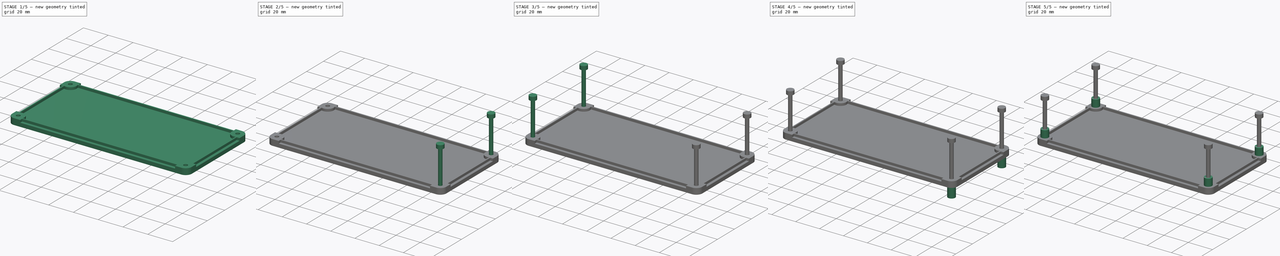
[diagram: build sequence overview — one tinted view per stage of 5, left to right]
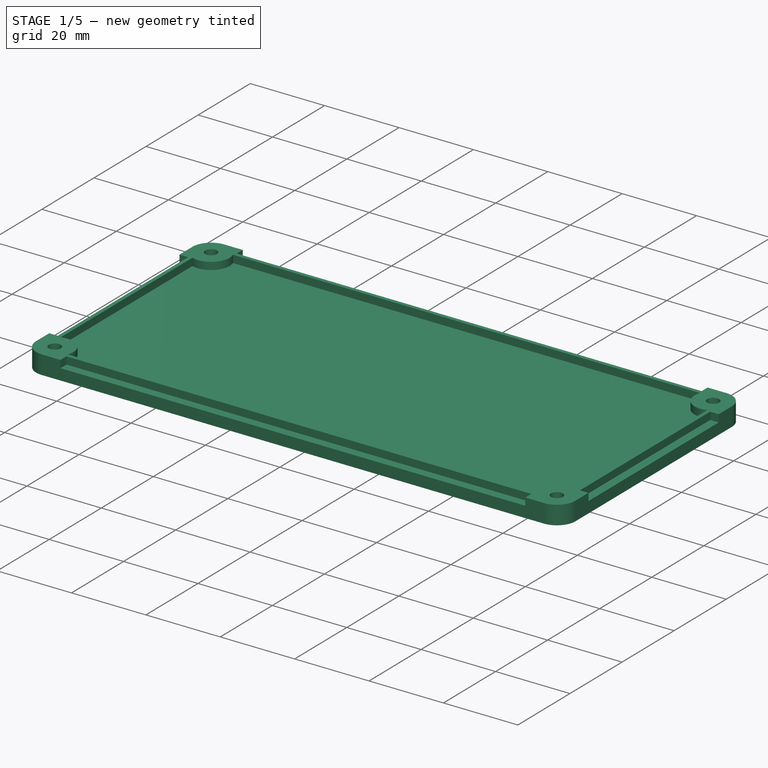
[diagram: stage 1 of 5 — iso view after this stage's code; geometry added in this stage tinted green]
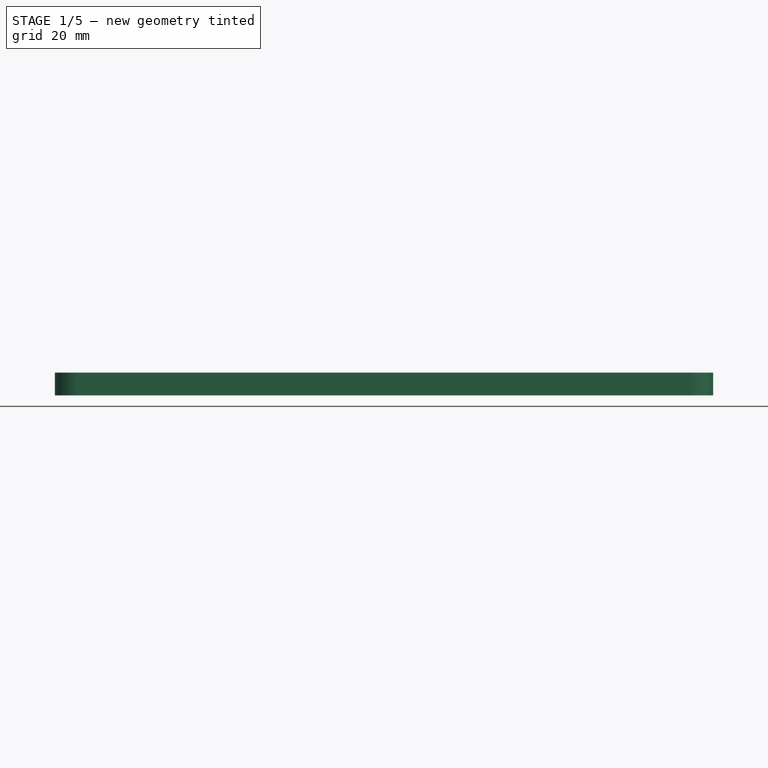
[diagram: stage 1 of 5 — front view after this stage's code; geometry added in this stage tinted green]
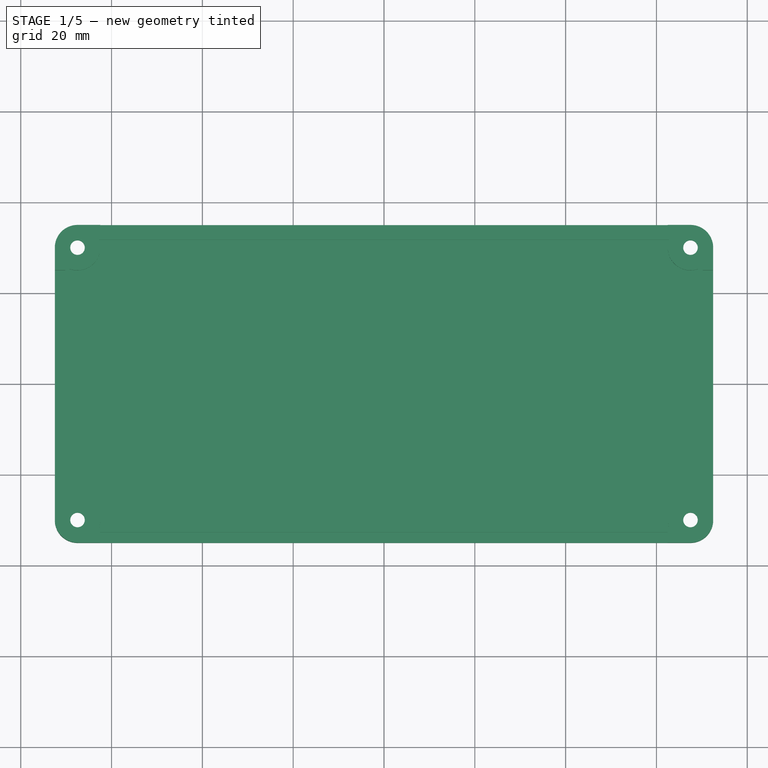
[diagram: stage 1 of 5 — top view after this stage's code; geometry added in this stage tinted green]
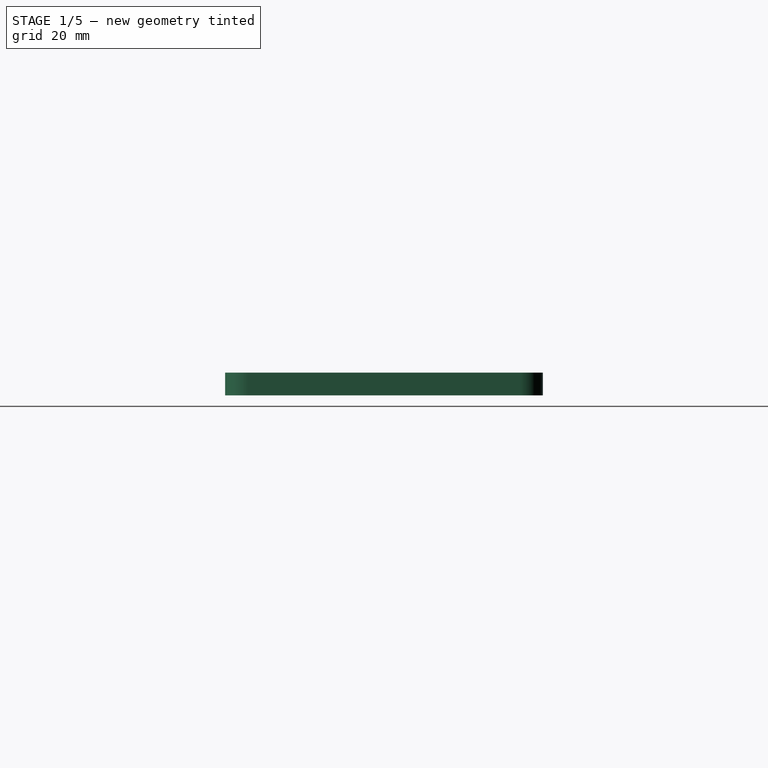
[diagram: stage 1 of 5 — right view after this stage's code; geometry added in this stage tinted green]
FCSTD DOCUMENT  (FreeCAD 0.16R6703 (Git))
Label: backside
License: CreativeCommons Attribution
LicenseURL: http://creativecommons.org/licenses/by/4.0/
objects: Part::FeaturePython×8, Sketcher::SketchObject×4, PartDesign::Pad×2, Part::MultiFuse×2, Part::Cylinder×1, PartDesign::Revolution×1, PartDesign::Pocket×1
note: 23 computed .brp shape members not serialized (recipe doc carries the construction recipe); baked Part::Feature solids carry a one-line shape summary decoded from their .brp

FEATURE [Sketcher::SketchObject] Sketch
  sketch-geometry (8):
    g0: LineSegment StartX=-67.5 StartY=-35 StartZ=0 EndX=67.5 EndY=-35 EndZ=0
    g1: LineSegment StartX=72.5 StartY=-30 StartZ=0 EndX=72.5 EndY=30 EndZ=0
    g2: LineSegment StartX=67.5 StartY=35 StartZ=0 EndX=-67.5 EndY=35 EndZ=0
    g3: LineSegment StartX=-72.5 StartY=30 StartZ=0 EndX=-72.5 EndY=-30 EndZ=0
    g4: ArcOfCircle CenterX=-67.5 CenterY=30 CenterZ=0 NormalX=0 NormalY=0 NormalZ=1 Radius=5 StartAngle=1.5708 EndAngle=3.14159
    g5: ArcOfCircle CenterX=-67.5 CenterY=-30 CenterZ=0 NormalX=0 NormalY=0 NormalZ=1 Radius=5 StartAngle=3.14159 EndAngle=4.71239
    g6: ArcOfCircle CenterX=67.5 CenterY=-30 CenterZ=0 NormalX=0 NormalY=0 NormalZ=1 Radius=5 StartAngle=4.71239 EndAngle=6.28319
    g7: ArcOfCircle CenterX=67.5 CenterY=30 CenterZ=0 NormalX=0 NormalY=0 NormalZ=1 Radius=5 StartAngle=0 EndAngle=1.5708
  constraints (19):
    c: Horizontal(g0)
    c: Horizontal(g2)
    c: Vertical(g1)
    c: Vertical(g3)
    c: Tangent(g2,g4)
    c: Tangent(g3,g4)
    c: Tangent(g0,g5)
    c: Tangent(g3,g5)
    c: Tangent(g0,g6)
    c: Tangent(g1,g6)
    c: Tangent(g1,g7)
    c: Tangent(g2,g7)
    c: Radius(g4) = 5
    c: Radius(g6) = 5
    c: Radius(g7) = 5
    c: DistanceY(g0,g2) = 70
    c: DistanceX(g3,g1) = 145
    c: Symmetric(g2,g0,g-1)
    c: Symmetric(g1,g3,g-2)
FEATURE [PartDesign::Pad] Pad
  Length = 3
  Length2 = 100
  Sketch = -> Sketch
  Type = 0
FEATURE [Sketcher::SketchObject] Sketch009
  Placement = pos=(0,0,3) rot=(0,0,1;0rad)
  Support = -> Pad [Face10]
  sketch-geometry (36):
    g0: ArcOfCircle CenterX=67.5 CenterY=30 CenterZ=0 NormalX=0 NormalY=0 NormalZ=1 Radius=5 StartAngle=0 EndAngle=1.5708
    g1: ArcOfCircle CenterX=67.5 CenterY=-30 CenterZ=0 NormalX=0 NormalY=0 NormalZ=1 Radius=5 StartAngle=4.71239 EndAngle=6.28319
    g2: ArcOfCircle CenterX=-67.5 CenterY=-30 CenterZ=0 NormalX=0 NormalY=0 NormalZ=1 Radius=5 StartAngle=3.14159 EndAngle=4.71239
    g3: ArcOfCircle CenterX=-67.5 CenterY=30 CenterZ=0 NormalX=0 NormalY=0 NormalZ=1 Radius=5 StartAngle=1.5708 EndAngle=3.14159
    g4: LineSegment StartX=-67.5 StartY=35 StartZ=0 EndX=-62.5 EndY=35 EndZ=0
    g5: LineSegment StartX=-62.5 StartY=35 StartZ=0 EndX=-62.5 EndY=32.7 EndZ=0
    g6: LineSegment StartX=-62.5 StartY=32.7 StartZ=0 EndX=62.5 EndY=32.7 EndZ=0
    g7: LineSegment StartX=62.5 StartY=32.7 StartZ=0 EndX=62.5 EndY=35 EndZ=0
    g8: LineSegment StartX=62.5 StartY=35 StartZ=0 EndX=67.5 EndY=35 EndZ=0
    g9: LineSegment StartX=-72.5 StartY=30 StartZ=0 EndX=-72.5 EndY=25 EndZ=0
    g10: LineSegment StartX=-72.5 StartY=25 StartZ=0 EndX=-70.2 EndY=25 EndZ=0
    g11: LineSegment StartX=-70.2 StartY=25 StartZ=0 EndX=-70.2 EndY=-25 EndZ=0
    g12: LineSegment StartX=-70.2 StartY=-25 StartZ=0 EndX=-72.5 EndY=-25 EndZ=0
    g13: LineSegment StartX=-72.5 StartY=-25 StartZ=0 EndX=-72.5 EndY=-30 EndZ=0
    g14: LineSegment StartX=-67.5 StartY=-35 StartZ=0 EndX=-62.5 EndY=-35 EndZ=0
    g15: LineSegment StartX=-62.5 StartY=-35 StartZ=0 EndX=-62.5 EndY=-32.7 EndZ=0
    g16: LineSegment StartX=-62.5 StartY=-32.7 StartZ=0 EndX=62.5 EndY=-32.7 EndZ=0
    g17: LineSegment StartX=62.5 StartY=-32.7 StartZ=0 EndX=62.5 EndY=-35 EndZ=0
    g18: LineSegment StartX=62.5 StartY=-35 StartZ=0 EndX=67.5 EndY=-35 EndZ=0
    g19: LineSegment StartX=72.5 StartY=-30 StartZ=0 EndX=72.5 EndY=-25 EndZ=0
    g20: LineSegment StartX=72.5 StartY=-25 StartZ=0 EndX=70.2 EndY=-25 EndZ=0
    g21: LineSegment StartX=70.2 StartY=-25 StartZ=0 EndX=70.2 EndY=25 EndZ=0
    g22: LineSegment StartX=70.2 StartY=25 StartZ=0 EndX=72.5 EndY=25 EndZ=0
    g23: LineSegment StartX=72.5 StartY=25 StartZ=0 EndX=72.5 EndY=30 EndZ=0
    g24: LineSegment StartX=-62.7979 StartY=31.7 StartZ=0 EndX=62.7979 EndY=31.7 EndZ=0
    g25: LineSegment StartX=69.2 StartY=25.2979 StartZ=0 EndX=69.2 EndY=-25.2979 EndZ=0
    g26: LineSegment StartX=62.7979 StartY=-31.7 StartZ=0 EndX=-62.7979 EndY=-31.7 EndZ=0
    g27: LineSegment StartX=-69.2 StartY=-25.2979 StartZ=0 EndX=-69.2 EndY=25.2979 EndZ=0
    g28: ArcOfCircle CenterX=-67.5 CenterY=30 CenterZ=0 NormalX=0 NormalY=0 NormalZ=1 Radius=5 StartAngle=4.36547 EndAngle=6.6301
    g29: ArcOfCircle CenterX=-67.5 CenterY=-30 CenterZ=0 NormalX=0 NormalY=0 NormalZ=1 Radius=5 StartAngle=5.93627 EndAngle=8.2009
    g30: ArcOfCircle CenterX=67.5 CenterY=-30 CenterZ=0 NormalX=0 NormalY=0 NormalZ=1 Radius=5 StartAngle=1.22388 EndAngle=3.48851
    g31: ArcOfCircle CenterX=67.5 CenterY=30 CenterZ=0 NormalX=0 NormalY=0 NormalZ=1 Radius=5 StartAngle=2.79468 EndAngle=5.05931
    g32: Circle CenterX=-67.5 CenterY=30 CenterZ=0 NormalX=0 NormalY=0 NormalZ=1 Radius=1.6
    g33: Circle CenterX=-67.5 CenterY=-30 CenterZ=0 NormalX=0 NormalY=0 NormalZ=1 Radius=1.6
    g34: Circle CenterX=67.5 CenterY=-30 CenterZ=0 NormalX=0 NormalY=0 NormalZ=1 Radius=1.6
    g35: Circle CenterX=67.5 CenterY=30 CenterZ=0 NormalX=0 NormalY=0 NormalZ=1 Radius=1.6
  constraints (100):
    c: Tangent(g3,g4) = 1.5708
    c: Coincident(g4,g5)
    c: Vertical(g5)
    c: Coincident(g5,g6)
    c: Coincident(g6,g7)
    c: Vertical(g7)
    c: Coincident(g7,g8)
    c: Coincident(g8,g0)
    c: Horizontal(g8)
    c: Tangent(g3,g9) = -1.5708
    c: Coincident(g9,g10)
    c: Horizontal(g10)
    c: Coincident(g10,g11)
    c: Vertical(g11)
    c: Coincident(g11,g12)
    c: Horizontal(g12)
    c: Coincident(g12,g13)
    c: Coincident(g13,g2)
    c: Vertical(g13)
    c: Tangent(g2,g14) = -1.5708
    c: Coincident(g14,g15)
    c: Vertical(g15)
    c: Coincident(g15,g16)
    c: Coincident(g16,g17)
    c: Vertical(g17)
    c: Coincident(g17,g18)
    c: Coincident(g18,g1)
    c: Horizontal(g18)
    c: Tangent(g1,g19) = -1.5708
    c: Coincident(g19,g20)
    c: Horizontal(g20)
    c: Coincident(g20,g21)
    c: Coincident(g21,g22)
    c: Horizontal(g22)
    c: Coincident(g22,g23)
    c: Coincident(g23,g0)
    c: Vertical(g23)
    c: Symmetric(g5,g6,g-2)
    c: Equal(g6,g16)
    c: Symmetric(g15,g16,g-2)
    c: Symmetric(g15,g5,g-1)
    c: Equal(g17,g20)
    c: Equal(g20,g22)
    c: Equal(g22,g7)
    c: Equal(g7,g5)
    c: Equal(g5,g10)
    c: Equal(g10,g12)
    c: Equal(g12,g15)
    c: Horizontal(g4)
    c: Horizontal(g14)
    c: Vertical(g19)
    c: Equal(g14,g4)
    c: Equal(g4,g9)
    c: Equal(g9,g13)
    c: Equal(g13,g18)
    c: Equal(g18,g19)
    c: Equal(g19,g23)
    c: Equal(g23,g8)
    c: Equal(g21,g11)
    c: Symmetric(g21,g20,g-1)
    c: Symmetric(g10,g11,g-1)
    c: Equal(g0,g3)
    c: Equal(g3,g2)
    c: DistanceX(g12,g19) = 145
    c: DistanceY(g17,g7) = 70
    c: Radius(g1) = 5
    c: DistanceX(g12,g11) = 2.3
    c: DistanceX(g3,g4) = 5
    c: Horizontal(g24)
    c: Horizontal(g26)
    c: Vertical(g25)
    c: Vertical(g27)
    c: Coincident(g28,g27)
    c: Coincident(g28,g24)
    c: Coincident(g28,g3)
    c: Radius(g28) = 5
    c: DistanceX(g10,g27) = 1
    c: DistanceY(g24,g5) = 1
    c: Coincident(g29,g2)
    c: Coincident(g29,g27)
    c: Coincident(g29,g26)
    c: Coincident(g30,g1)
    c: Coincident(g30,g26)
    c: Coincident(g30,g25)
    c: Coincident(g31,g0)
    c: Coincident(g31,g25)
    c: Coincident(g31,g24)
    c: Symmetric(g27,g25,g-2)
    c: Equal(g28,g29)
    c: Equal(g29,g30)
    c: Equal(g30,g31)
    c: Symmetric(g24,g26,g-1)
    c: Coincident(g32,g3)
    c: Coincident(g33,g2)
    c: Coincident(g34,g1)
    c: Coincident(g35,g0)
    c: Equal(g34,g35)
    c: Equal(g35,g32)
    c: Equal(g32,g33)
    c: Radius(g32) = 1.6
FEATURE [PartDesign::Pad] Pad001
  Length = 2
  Length2 = 100
  Sketch = -> Sketch009
  Type = 0
FEATURE [Sketcher::SketchObject] Sketch010
  Placement = pos=(0,0,0) rot=(1,0,0;3.14159rad)
  Support = -> Pad001 [Face1]
  sketch-geometry (28):
    g0: LineSegment StartX=-64.65 StartY=28.3546 StartZ=0 EndX=-64.65 EndY=31.6454 EndZ=0
    g1: LineSegment StartX=-64.65 StartY=31.6454 StartZ=0 EndX=-67.5 EndY=33.2909 EndZ=0
    g2: LineSegment StartX=-67.5 StartY=33.2909 StartZ=0 EndX=-70.35 EndY=31.6454 EndZ=0
    g3: LineSegment StartX=-70.35 StartY=31.6454 StartZ=0 EndX=-70.35 EndY=28.3546 EndZ=0
    g4: LineSegment StartX=-70.35 StartY=28.3546 StartZ=0 EndX=-67.5 EndY=26.7091 EndZ=0
    g5: LineSegment StartX=-67.5 StartY=26.7091 StartZ=0 EndX=-64.65 EndY=28.3546 EndZ=0
    g6: Circle [constr] CenterX=-67.5 CenterY=30 CenterZ=0 NormalX=0 NormalY=0 NormalZ=1 Radius=3.2909
    g7: LineSegment StartX=-64.65 StartY=-31.6454 StartZ=0 EndX=-64.65 EndY=-28.3546 EndZ=0
    g8: LineSegment StartX=-64.65 StartY=-28.3546 StartZ=0 EndX=-67.5 EndY=-26.7091 EndZ=0
    g9: LineSegment StartX=-67.5 StartY=-26.7091 StartZ=0 EndX=-70.35 EndY=-28.3546 EndZ=0
    g10: LineSegment StartX=-70.35 StartY=-28.3546 StartZ=0 EndX=-70.35 EndY=-31.6454 EndZ=0
    g11: LineSegment StartX=-70.35 StartY=-31.6454 StartZ=0 EndX=-67.5 EndY=-33.2909 EndZ=0
    g12: LineSegment StartX=-67.5 StartY=-33.2909 StartZ=0 EndX=-64.65 EndY=-31.6454 EndZ=0
    g13: Circle [constr] CenterX=-67.5 CenterY=-30 CenterZ=0 NormalX=0 NormalY=0 NormalZ=1 Radius=3.2909
    g14: LineSegment StartX=70.35 StartY=-31.6454 StartZ=0 EndX=70.35 EndY=-28.3546 EndZ=0
    g15: LineSegment StartX=70.35 StartY=-28.3546 StartZ=0 EndX=67.5 EndY=-26.7091 EndZ=0
    g16: LineSegment StartX=67.5 StartY=-26.7091 StartZ=0 EndX=64.65 EndY=-28.3546 EndZ=0
    g17: LineSegment StartX=64.65 StartY=-28.3546 StartZ=0 EndX=64.65 EndY=-31.6454 EndZ=0
    g18: LineSegment StartX=64.65 StartY=-31.6454 StartZ=0 EndX=67.5 EndY=-33.2909 EndZ=0
    g19: LineSegment StartX=67.5 StartY=-33.2909 StartZ=0 EndX=70.35 EndY=-31.6454 EndZ=0
    g20: Circle [constr] CenterX=67.5 CenterY=-30 CenterZ=0 NormalX=0 NormalY=0 NormalZ=1 Radius=3.2909
    g21: LineSegment StartX=70.35 StartY=28.3546 StartZ=0 EndX=70.35 EndY=31.6454 EndZ=0
    g22: LineSegment StartX=70.35 StartY=31.6454 StartZ=0 EndX=67.5 EndY=33.2909 EndZ=0
    g23: LineSegment StartX=67.5 StartY=33.2909 StartZ=0 EndX=64.65 EndY=31.6454 EndZ=0
    g24: LineSegment StartX=64.65 StartY=31.6454 StartZ=0 EndX=64.65 EndY=28.3546 EndZ=0
    g25: LineSegment StartX=64.65 StartY=28.3546 StartZ=0 EndX=67.5 EndY=26.7091 EndZ=0
    g26: LineSegment StartX=67.5 StartY=26.7091 StartZ=0 EndX=70.35 EndY=28.3546 EndZ=0
    g27: Circle [constr] CenterX=67.5 CenterY=30 CenterZ=0 NormalX=0 NormalY=0 NormalZ=1 Radius=3.2909
  constraints (65):
    c: Coincident(g0,g1)
    c: Coincident(g1,g2)
    c: Coincident(g2,g3)
    c: Coincident(g3,g4)
    c: Coincident(g4,g5)
    c: Coincident(g5,g0)
    c: Equal(g0, g1-g5) x5
    c: PointOnObject(g0,g6)
    c: PointOnObject(g1,g6)
    c: PointOnObject(g2,g6)
    c: PointOnObject(g3,g6)
    c: PointOnObject(g4,g6)
    c: PointOnObject(g5,g6)
    c: Distance(g2,g0) = 5.7
    c: DistanceX(g6,g1) = 0
    c: Coincident(g7,g8)
    c: Coincident(g8,g9)
    c: Coincident(g9,g10)
    c: Coincident(g10,g11)
    c: Coincident(g11,g12)
    c: Coincident(g12,g7)
    c: Equal(g7, g8-g12) x5
    c: PointOnObject(g7,g13)
    c: PointOnObject(g8,g13)
    c: PointOnObject(g9,g13)
    c: PointOnObject(g10,g13)
    c: PointOnObject(g11,g13)
    c: PointOnObject(g12,g13)
    c: Coincident(g14,g15)
    c: Coincident(g15,g16)
    c: Coincident(g16,g17)
    c: Coincident(g17,g18)
    c: Coincident(g18,g19)
    c: Coincident(g19,g14)
    c: Equal(g14, g15-g19) x5
    c: PointOnObject(g14,g20)
    c: PointOnObject(g15,g20)
    c: PointOnObject(g16,g20)
    c: PointOnObject(g17,g20)
    c: PointOnObject(g18,g20)
    c: PointOnObject(g19,g20)
    c: Coincident(g21,g22)
    c: Coincident(g22,g23)
    c: Coincident(g23,g24)
    c: Coincident(g24,g25)
    c: Coincident(g25,g26)
    c: Coincident(g26,g21)
    c: Equal(g21, g22-g26) x5
    c: PointOnObject(g21,g27)
    c: PointOnObject(g22,g27)
    c: PointOnObject(g23,g27)
    c: PointOnObject(g24,g27)
    c: PointOnObject(g25,g27)
    c: PointOnObject(g26,g27)
    c: Equal(g19,g5)
    c: Equal(g5,g12)
    c: Equal(g12,g26)
    c: Vertical(g7)
    c: Vertical(g21)
    c: Vertical(g14)
    c: Symmetric(g6,g27,g-2)
    c: Symmetric(g20,g13,g-2)
    c: Symmetric(g20,g27,g-1)
    c: DistanceX(g13,g20) = 135
    c: DistanceY(g13,g6) = 60
FEATURE [PartDesign::Pocket] Pocket
  Length = 3.5
  Sketch = -> Sketch010
  Type = 0
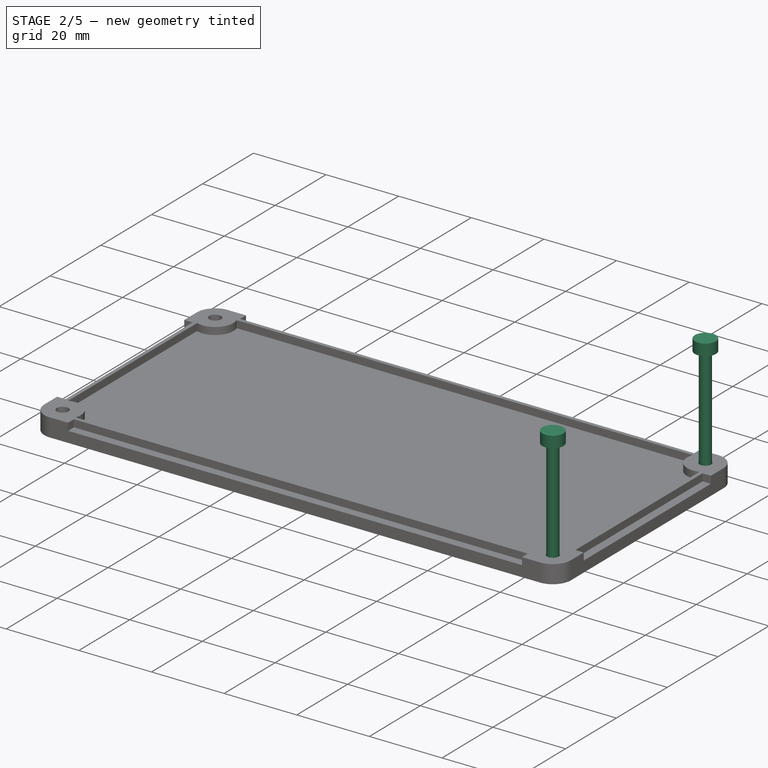
[diagram: stage 2 of 5 — iso view after this stage's code; geometry added in this stage tinted green]
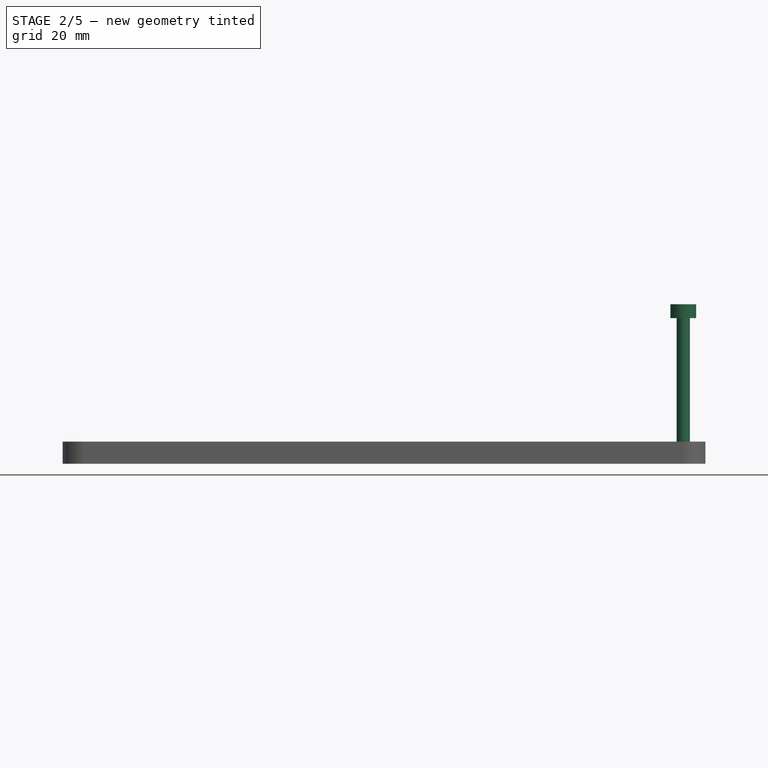
[diagram: stage 2 of 5 — front view after this stage's code; geometry added in this stage tinted green]
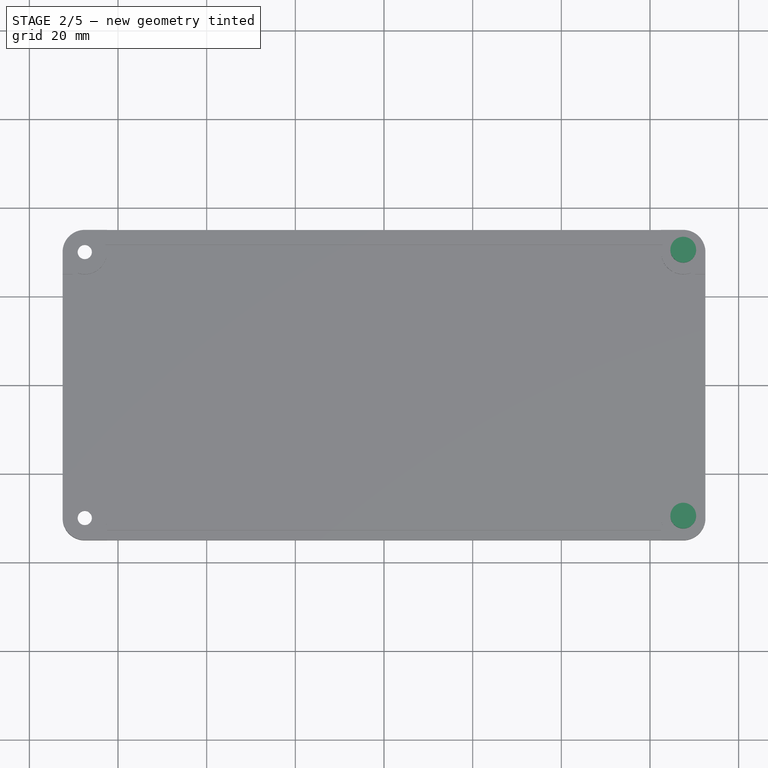
[diagram: stage 2 of 5 — top view after this stage's code; geometry added in this stage tinted green]
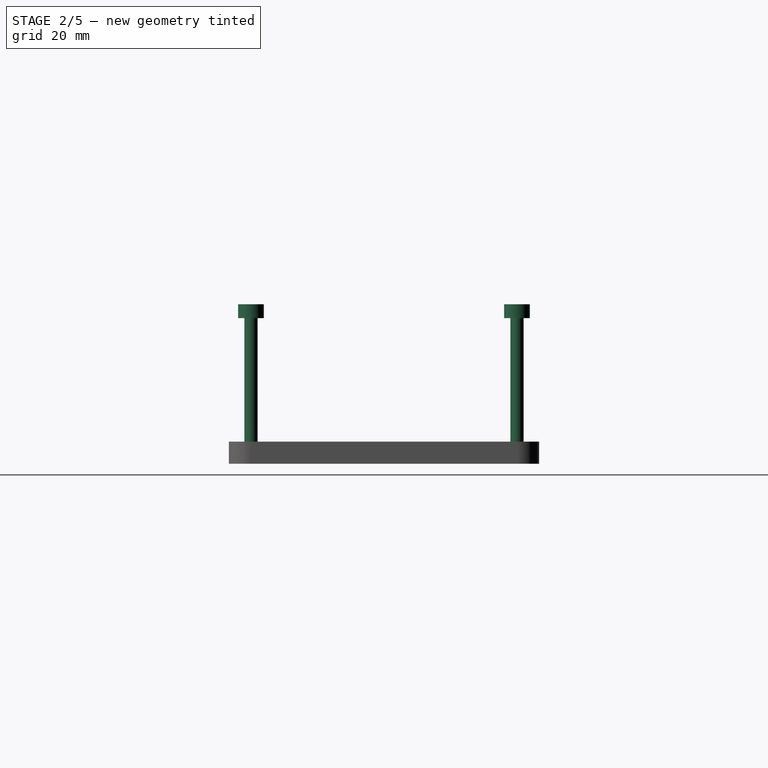
[diagram: stage 2 of 5 — right view after this stage's code; geometry added in this stage tinted green]
FEATURE [Sketcher::SketchObject] Sketch007
  Placement = pos=(0,0,0) rot=(1,0,0;1.5708rad)
  sketch-geometry (6):
    g0: LineSegment StartX=0 StartY=1.85 StartZ=0 EndX=0 EndY=36 EndZ=0
    g1: LineSegment StartX=-2.9 StartY=32.85 StartZ=0 EndX=-2.9 EndY=36 EndZ=0
    g2: LineSegment StartX=-2.9 StartY=36 StartZ=0 EndX=0 EndY=36 EndZ=0
    g3: LineSegment StartX=-1.5 StartY=32.85 StartZ=0 EndX=-1.5 EndY=1.85 EndZ=0
    g4: LineSegment StartX=-1.5 StartY=1.85 StartZ=0 EndX=0 EndY=1.85 EndZ=0
    g5: LineSegment StartX=-2.9 StartY=32.85 StartZ=0 EndX=-1.5 EndY=32.85 EndZ=0
  constraints (18):
    c: Coincident(g1,g2)
    c: Coincident(g3,g4)
    c: Coincident(g4,g0)
    c: Coincident(g5,g1)
    c: Coincident(g5,g3)
    c: Coincident(g0,g2)
    c: DistanceY(g1,g1) = 3.15
    c: DistanceX(g1,g0) = 2.9
    c: DistanceX(g3,g0) = 1.5
    c: Vertical(g3)
    c: Vertical(g0)
    c: Horizontal(g2)
    c: Horizontal(g5)
    c: Vertical(g1)
    c: Horizontal(g4)
    c: DistanceY(g3,g3) = 31
    c: DistanceY(g-1,g0) = 36
    c: DistanceX(g0,g-1) = 0
FEATURE [PartDesign::Revolution] Revolution
  Angle = 360
  Axis = (0,0,1)
  Base = (0,0,0)
  Placement = pos=(0,0,0) rot=(1,0,0;1.5708rad)
  ReferenceAxis = -> Sketch007 [V_Axis]
  Sketch = -> Sketch007
FEATURE [Part::FeaturePython] Clone002  label="Clone of Revolution002"  # Draft clone (typed FeaturePython)
  Objects = -> [Revolution]
  Placement = pos=(67.5,-30,0) rot=(1,0,0;1.5708rad)
  Scale = (1,1,1)
FEATURE [Part::FeaturePython] Clone003  label="Clone of Revolution003"  # Draft clone (typed FeaturePython)
  Objects = -> [Revolution]
  Placement = pos=(67.5,30,0) rot=(1,0,0;1.5708rad)
  Scale = (1,1,1)
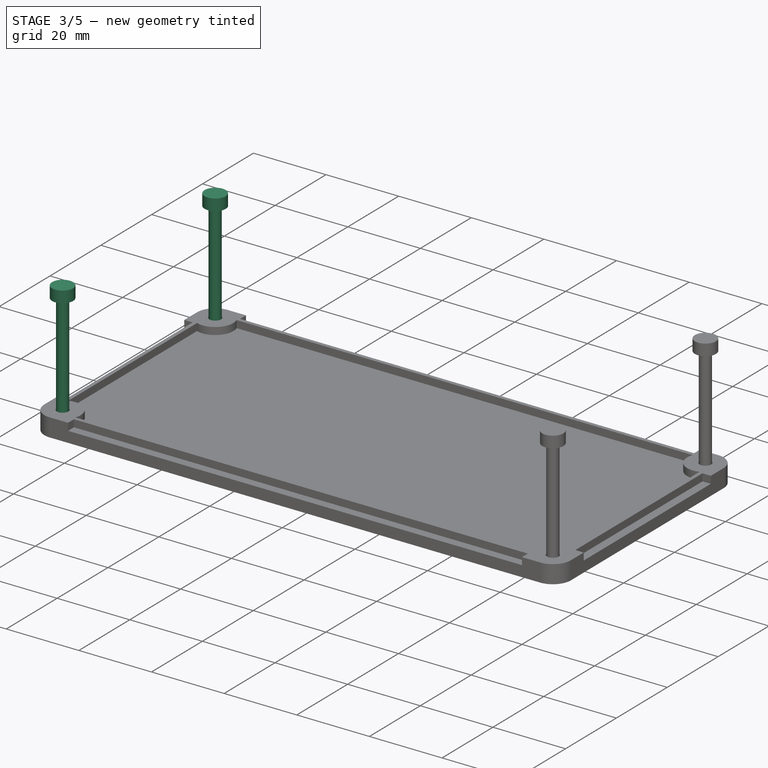
[diagram: stage 3 of 5 — iso view after this stage's code; geometry added in this stage tinted green]
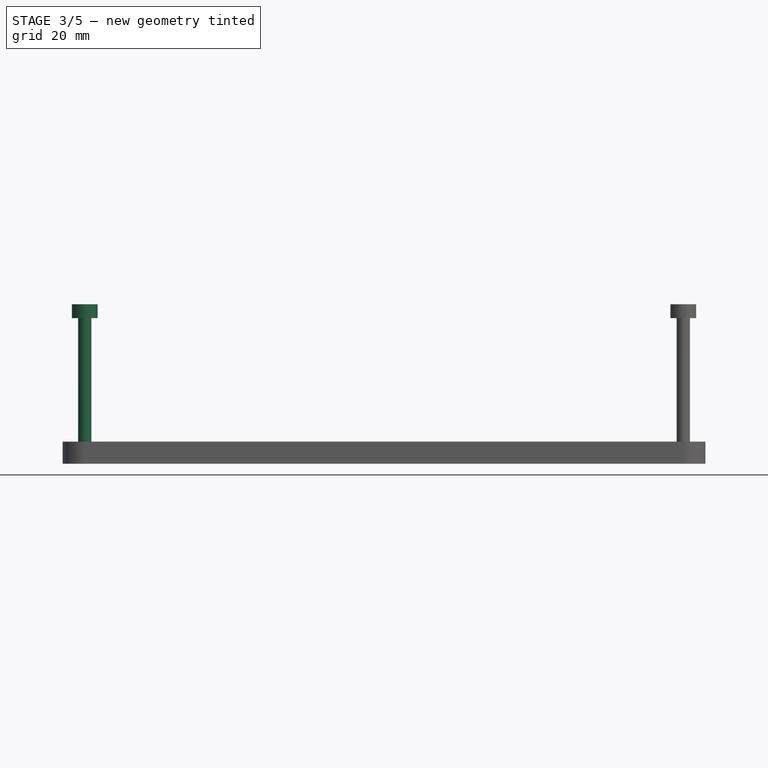
[diagram: stage 3 of 5 — front view after this stage's code; geometry added in this stage tinted green]
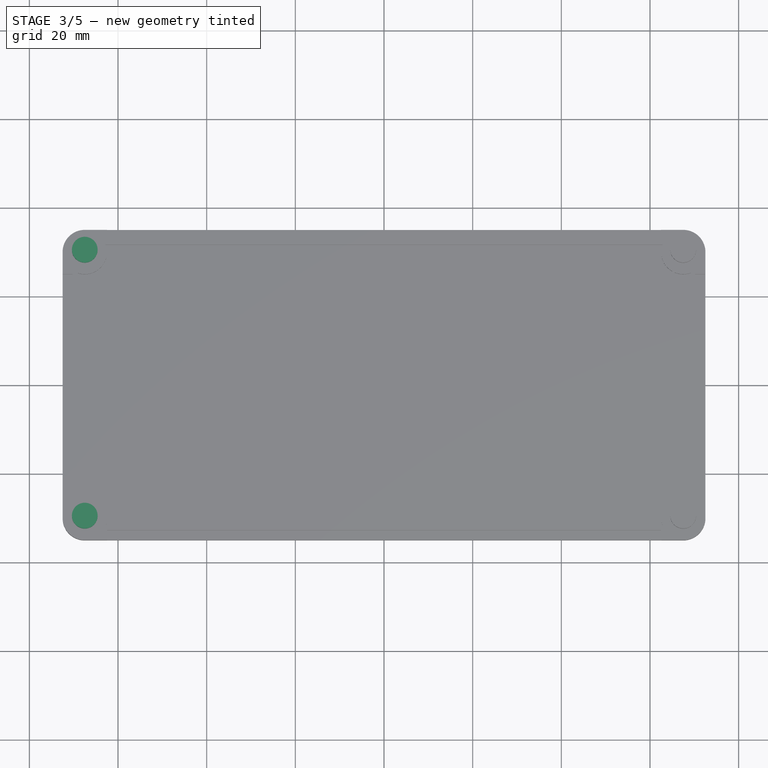
[diagram: stage 3 of 5 — top view after this stage's code; geometry added in this stage tinted green]
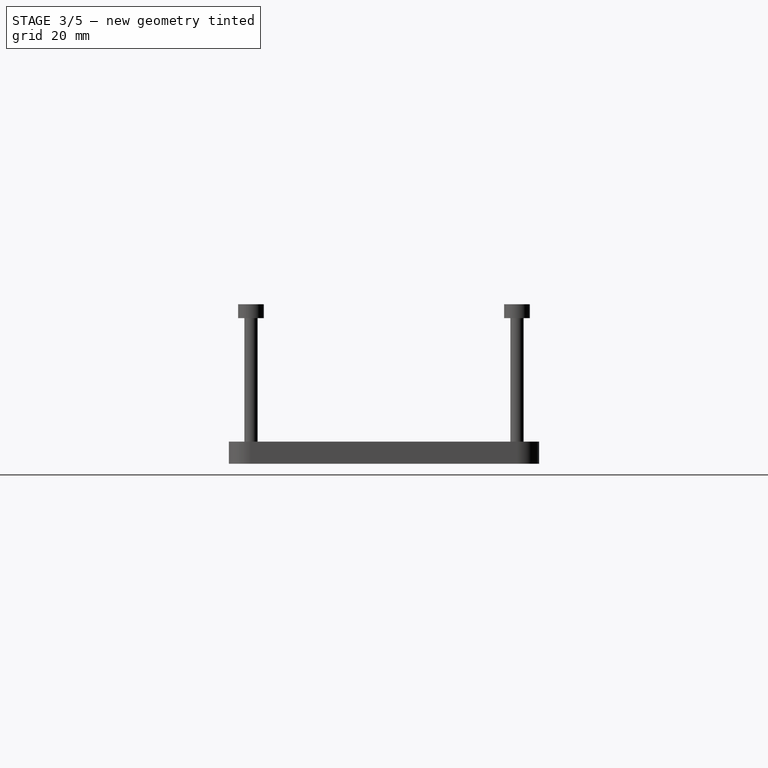
[diagram: stage 3 of 5 — right view after this stage's code; geometry added in this stage tinted green]
FEATURE [Part::FeaturePython] Clone  label="Clone of Revolution"  # Draft clone (typed FeaturePython)
  Objects = -> [Revolution]
  Placement = pos=(-67.5,30,0) rot=(1,0,0;1.5708rad)
  Scale = (1,1,1)
FEATURE [Part::FeaturePython] Clone001  label="Clone of Revolution001"  # Draft clone (typed FeaturePython)
  Objects = -> [Revolution]
  Placement = pos=(-67.5,-30,0) rot=(1,0,0;1.5708rad)
  Scale = (1,1,1)
FEATURE [Part::MultiFuse] Fusion001  label="Fusion_Schrauben"
  Shapes = -> [Clone,Clone001,Clone003,Clone002]
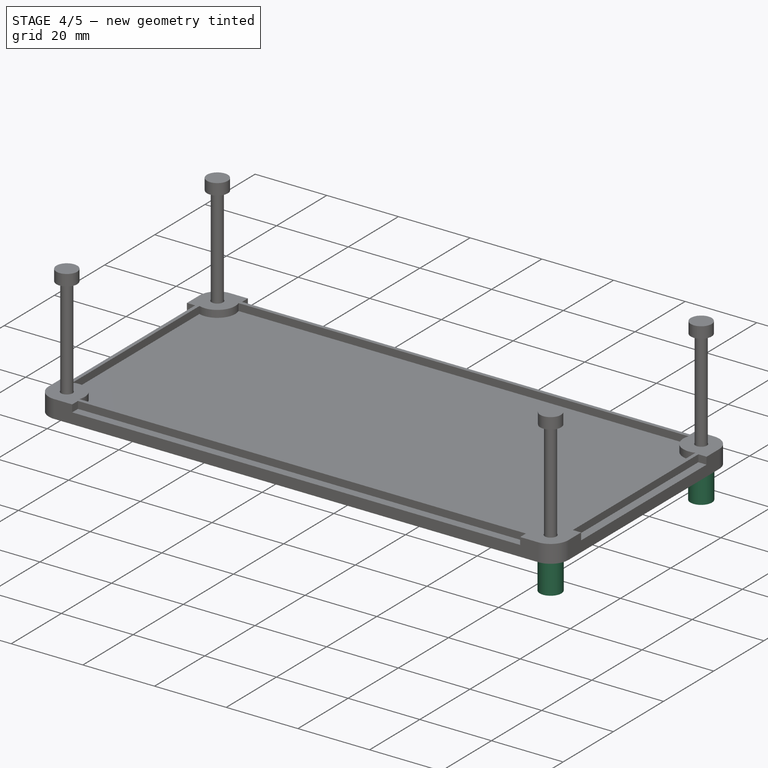
[diagram: stage 4 of 5 — iso view after this stage's code; geometry added in this stage tinted green]
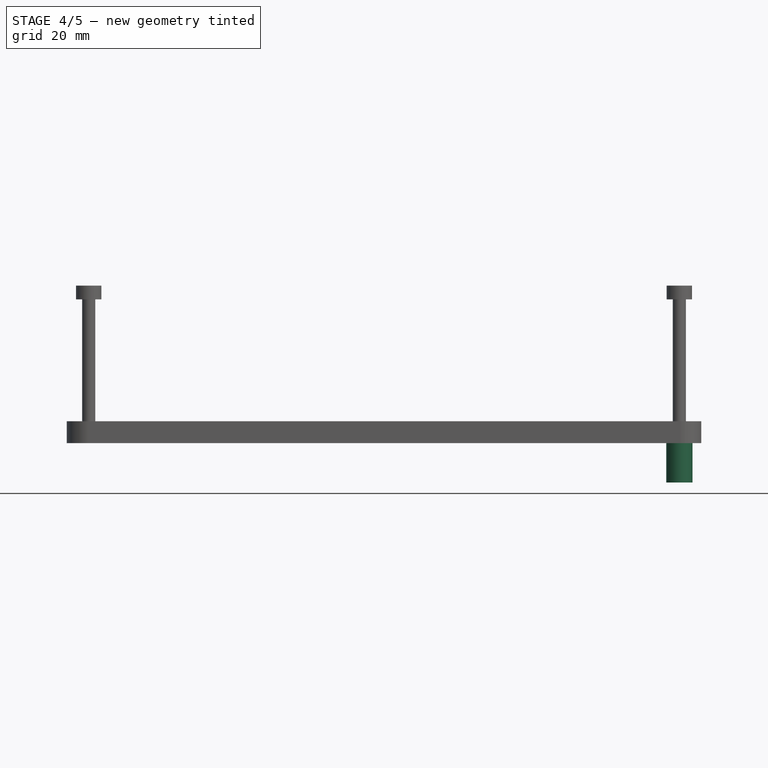
[diagram: stage 4 of 5 — front view after this stage's code; geometry added in this stage tinted green]
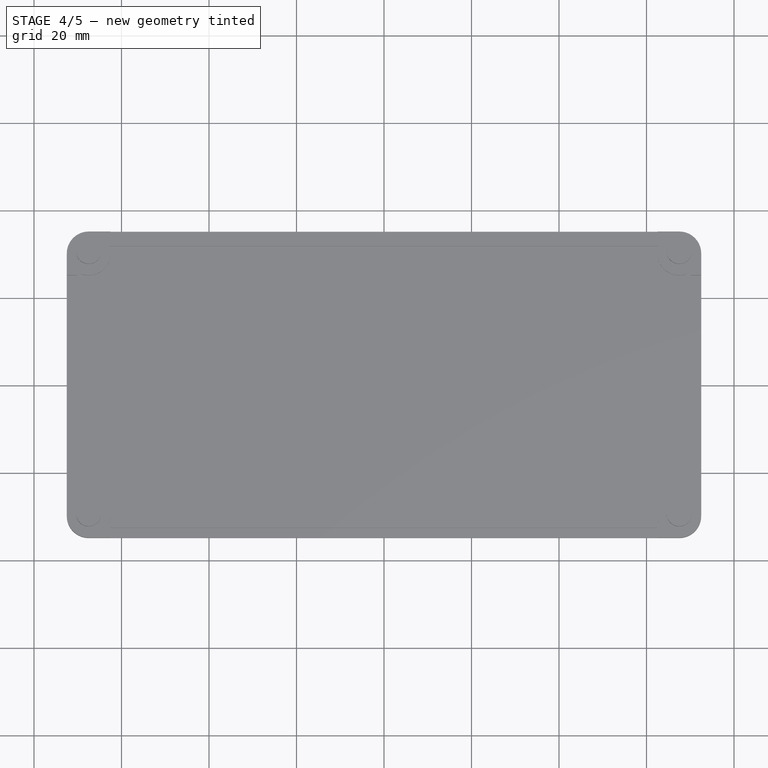
[diagram: stage 4 of 5 — top view after this stage's code; geometry added in this stage tinted green]
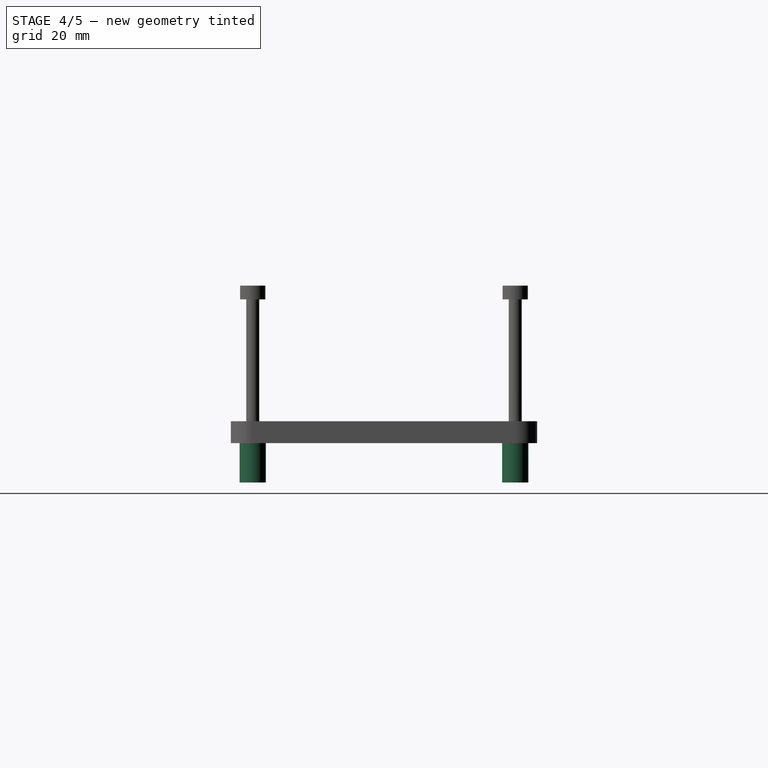
[diagram: stage 4 of 5 — right view after this stage's code; geometry added in this stage tinted green]
FEATURE [Part::Cylinder] Cylinder001  label="Zylinder"
  Angle = 360
  Height = 10
  Placement = pos=(0,0,-11) rot=(0,0,1;0rad)
  Radius = 3
FEATURE [Part::FeaturePython] Clone006  label="Clone of Zylinder002"  # Draft clone (typed FeaturePython)
  Objects = -> [Cylinder001]
  Placement = pos=(67.5,-30,-9) rot=(0,0,1;0rad)
  Scale = (1,1,1)
FEATURE [Part::FeaturePython] Clone007  label="Clone of Zylinder003"  # Draft clone (typed FeaturePython)
  Objects = -> [Cylinder001]
  Placement = pos=(67.5,30,-9) rot=(0,0,1;0rad)
  Scale = (1,1,1)
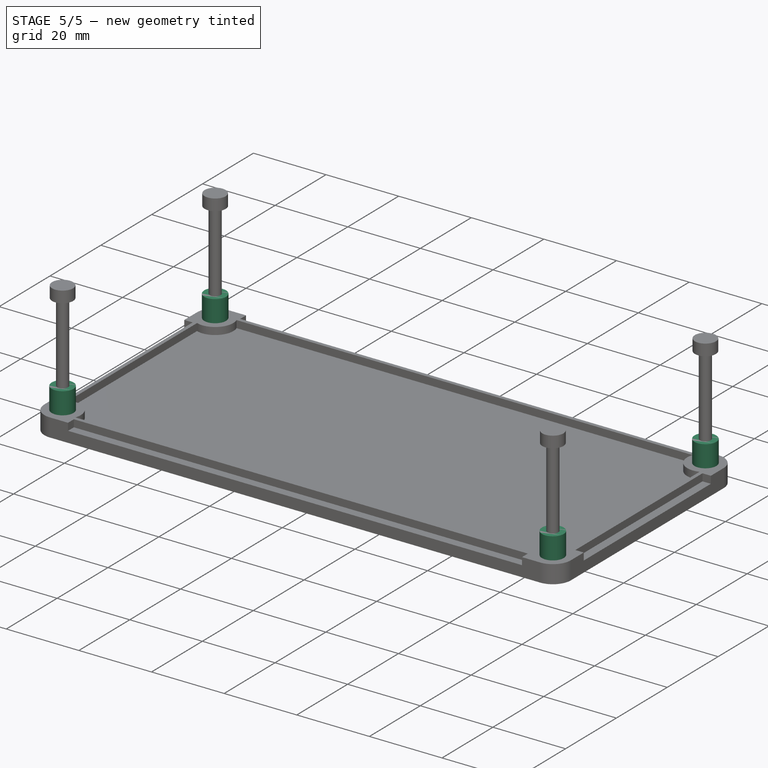
[diagram: stage 5 of 5 — iso view after this stage's code; geometry added in this stage tinted green]
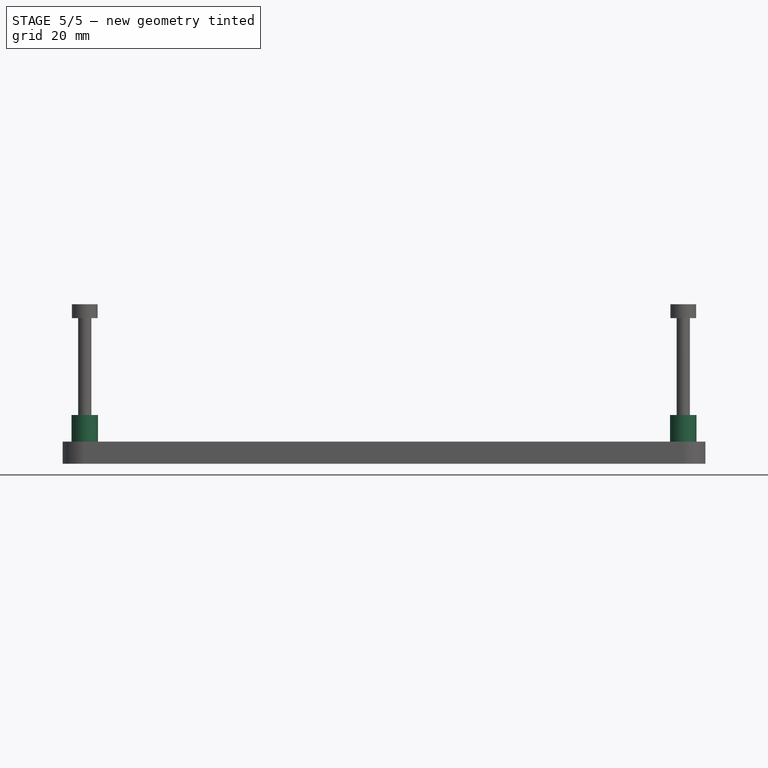
[diagram: stage 5 of 5 — front view after this stage's code; geometry added in this stage tinted green]
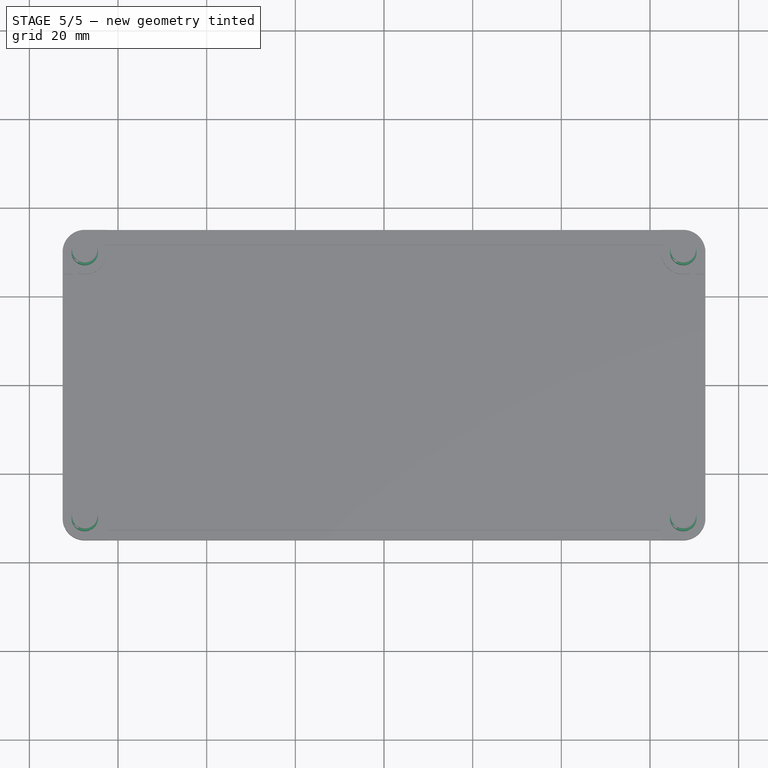
[diagram: stage 5 of 5 — top view after this stage's code; geometry added in this stage tinted green]
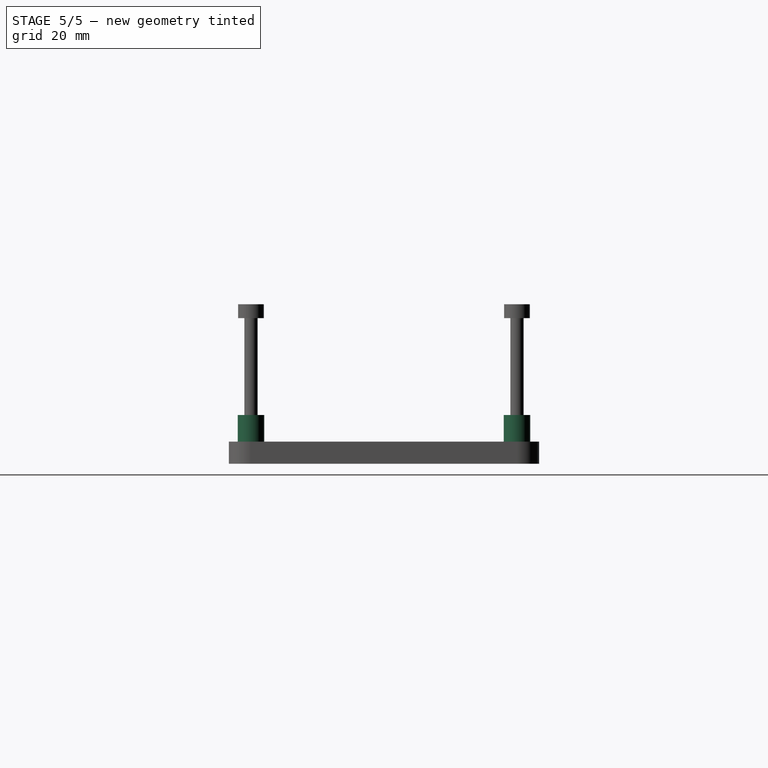
[diagram: stage 5 of 5 — right view after this stage's code; geometry added in this stage tinted green]
FEATURE [Part::FeaturePython] Clone004  label="Clone of Zylinder"  # Draft clone (typed FeaturePython)
  Objects = -> [Cylinder001]
  Placement = pos=(-67.5,30,-9) rot=(0,0,1;0rad)
  Scale = (1,1,1)
FEATURE [Part::FeaturePython] Clone005  label="Clone of Zylinder001"  # Draft clone (typed FeaturePython)
  Objects = -> [Cylinder001]
  Placement = pos=(-67.5,-30,-9) rot=(0,0,1;0rad)
  Scale = (1,1,1)
FEATURE [Part::MultiFuse] Fusion  label="Fusion_Zylinder"
  Placement = pos=(0,0,10) rot=(0,0,1;0rad)
  Shapes = -> [Clone004,Clone005,Clone007,Clone006]
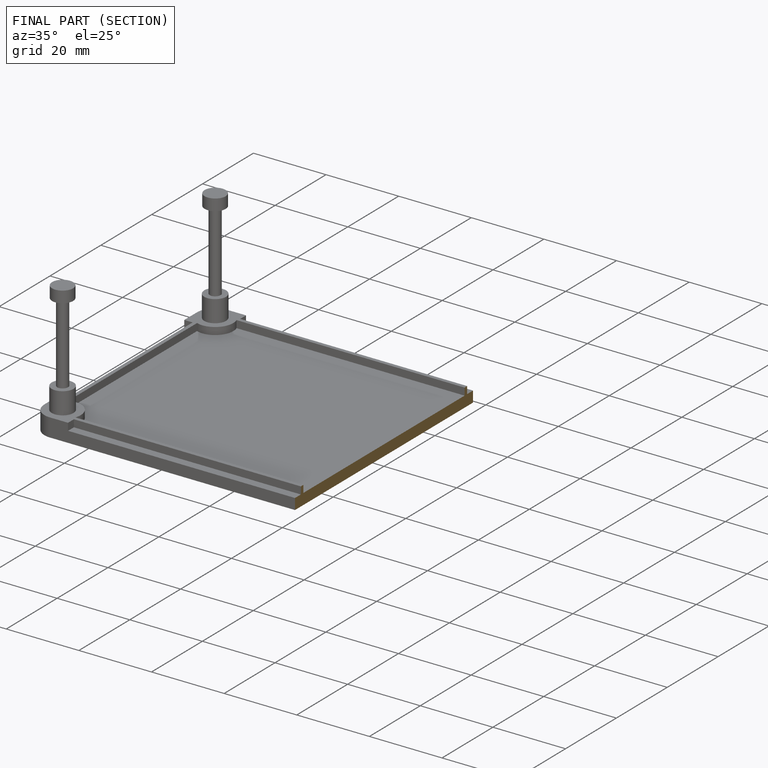
[diagram: finished part — half-section view (interior)]
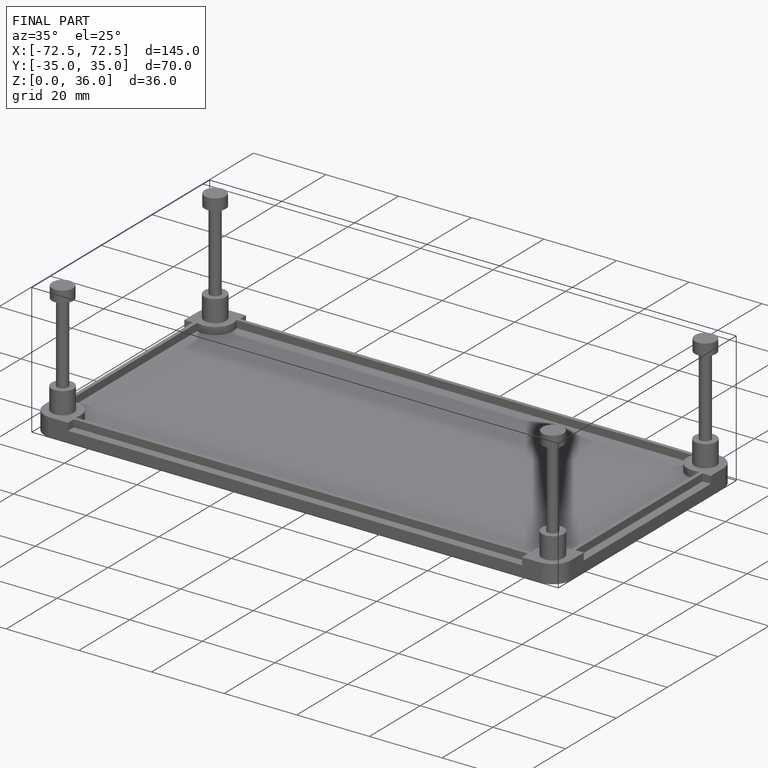
[diagram: finished part — iso view with bounding-box wireframe]
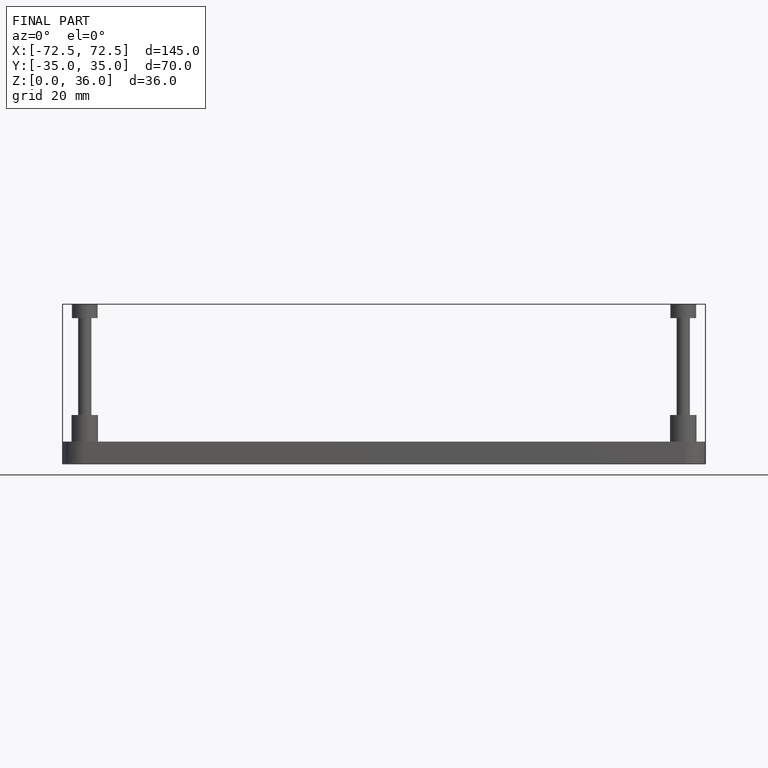
[diagram: finished part — front view with bounding-box wireframe]
